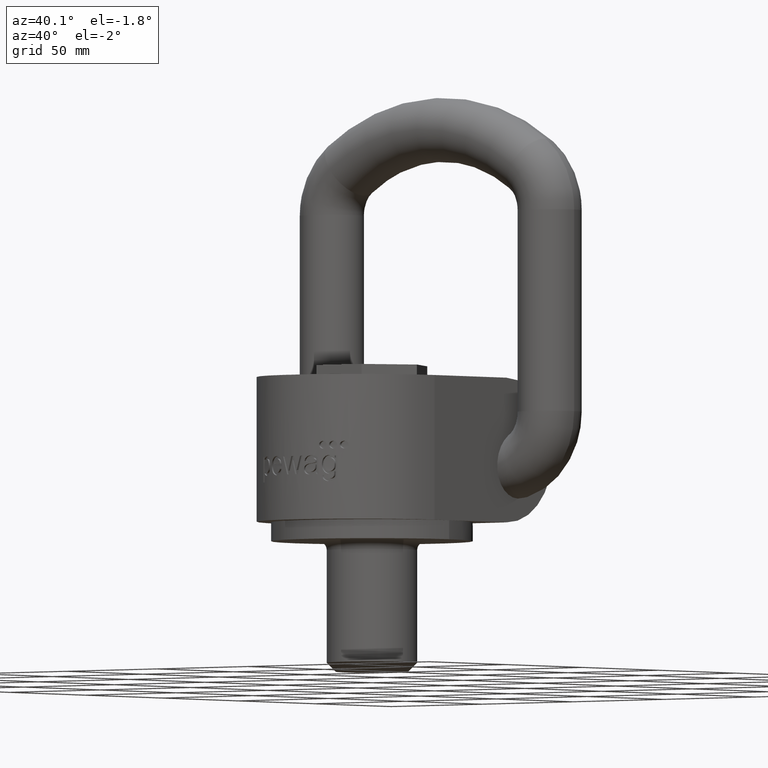
[diagram: clean part render]
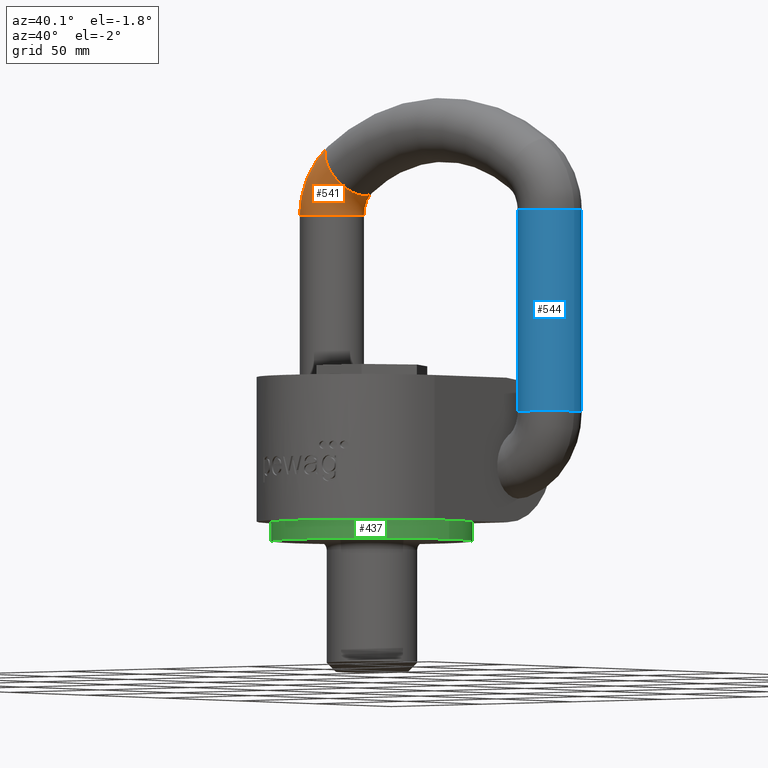
[diagram: same view with three faces highlighted in distinct colors, each labeled with its STEP entity id]
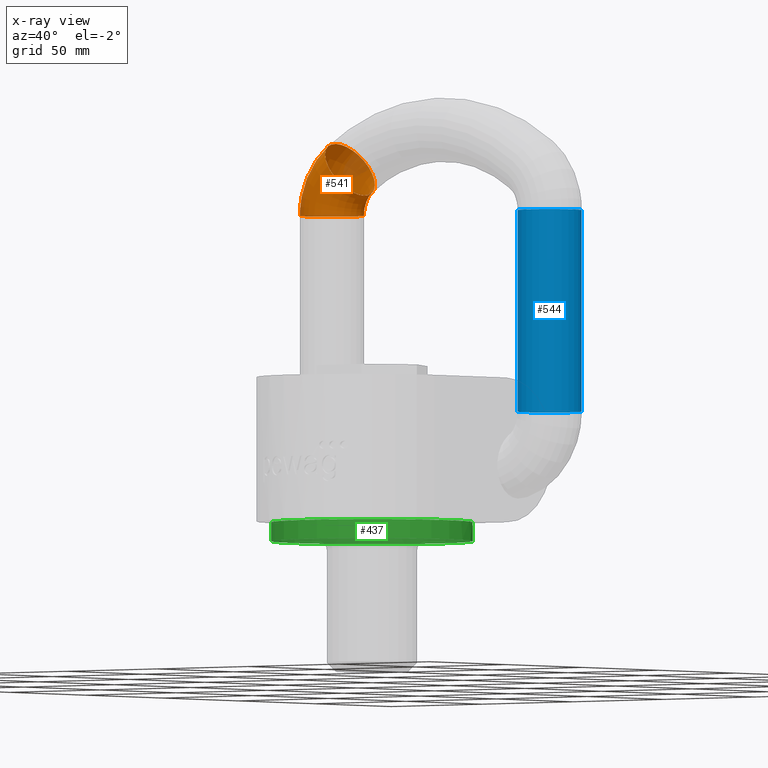
[diagram: x-ray of the same camera — body ghosted, the three highlighted faces saturated]
A machine part, auxiliary view with three faces highlighted in distinct colors.
The next image is the same camera in x-ray (body ghosted, the three faces saturated) — at least one of them is partly hidden behind the body in this view.
Their STEP definitions:

[orange] entity #541 — the highlighted toroidal blend (fillet) surface has major radius 23.5 mm and minor (blend) radius 13.5 mm.
#241=TOROIDAL_SURFACE('',#2595,23.5,13.5);
#541=ADVANCED_FACE('',(#625,#626),#241,.T.);
#625=FACE_BOUND('',#789,.T.);
#626=FACE_BOUND('',#790,.T.);
#789=EDGE_LOOP('',(#1755));
#790=EDGE_LOOP('',(#1756));
#1137=CIRCLE('',#2592,13.5);
#1138=CIRCLE('',#2594,13.5);
#1755=ORIENTED_EDGE('',*,*,#2284,.T.);
#1756=ORIENTED_EDGE('',*,*,#2283,.F.);
#1972=VERTEX_POINT('',#5099);
#1973=VERTEX_POINT('',#5102);
#2283=EDGE_CURVE('',#1972,#1972,#1137,.T.);
#2284=EDGE_CURVE('',#1973,#1973,#1138,.T.);
#2592=AXIS2_PLACEMENT_3D('',#5098,#3038,#3039);
#2594=AXIS2_PLACEMENT_3D('',#5101,#3042,#3043);
#2595=AXIS2_PLACEMENT_3D('',#5103,#3044,#3045);
#3038=DIRECTION('',(-1.11022302462516E-16,0.,-1.));
#3039=DIRECTION('',(-1.,0.,0.));
#3042=DIRECTION('',(-0.818291720111281,0.,-0.574803149606299));
#3043=DIRECTION('',(-0.574803149606299,0.,0.818291720111281));
#3044=DIRECTION('',(0.,-1.,0.));
#3045=DIRECTION('',(0.,0.,-1.));
#5098=CARTESIAN_POINT('',(-60.,45.,131.461524227066));
#5099=CARTESIAN_POINT('',(-73.5,45.,131.461524227066));
#5101=CARTESIAN_POINT('',(-50.007874015748,45.,150.691379649681));
#5102=CARTESIAN_POINT('',(-57.767716535433,45.,161.738317871184));
#5103=CARTESIAN_POINT('',(-36.5,45.,131.461524227066));

[blue] entity #544 — the highlighted cylindrical surface (bore or boss wall) has radius 13.5 mm, axis along (0, 0, -1).
#544=ADVANCED_FACE('',(#631,#632),#562,.T.);
#562=CYLINDRICAL_SURFACE('',#2600,13.5);
#631=FACE_BOUND('',#795,.T.);
#632=FACE_BOUND('',#796,.T.);
#795=EDGE_LOOP('',(#1761));
#796=EDGE_LOOP('',(#1762));
#1134=CIRCLE('',#2586,13.5);
#1140=CIRCLE('',#2598,13.5);
#1761=ORIENTED_EDGE('',*,*,#2286,.F.);
#1762=ORIENTED_EDGE('',*,*,#2280,.T.);
#1969=VERTEX_POINT('',#5090);
#1975=VERTEX_POINT('',#5108);
#2280=EDGE_CURVE('',#1969,#1969,#1134,.T.);
#2286=EDGE_CURVE('',#1975,#1975,#1140,.T.);
#2586=AXIS2_PLACEMENT_3D('',#5089,#3026,#3027);
#2598=AXIS2_PLACEMENT_3D('',#5107,#3050,#3051);
#2600=AXIS2_PLACEMENT_3D('',#5110,#3054,#3055);
#3026=DIRECTION('',(1.12166540207738E-15,0.,1.));
#3027=DIRECTION('',(1.,0.,-1.02798428206033E-15));
#3050=DIRECTION('',(1.12166540207738E-15,0.,1.));
#3051=DIRECTION('',(1.,0.,-2.05596856412066E-15));
#3054=DIRECTION('',(0.,0.,-1.));
#3055=DIRECTION('',(-1.,0.,0.));
#5089=CARTESIAN_POINT('',(60.,45.,46.4999999999999));
#5090=CARTESIAN_POINT('',(73.5,45.,46.4999999999999));
#5107=CARTESIAN_POINT('',(60.,45.,131.461524227066));
#5108=CARTESIAN_POINT('',(73.5,45.,131.461524227066));
#5110=CARTESIAN_POINT('',(60.,45.,131.461524227066));

[green] entity #437 — the highlighted cylindrical surface (bore or boss wall) has radius 42.5 mm, axis along (0, 0, 1).
#437=ADVANCED_FACE('',(#593,#594),#548,.T.);
#548=CYLINDRICAL_SURFACE('',#2525,42.5);
#593=FACE_BOUND('',#669,.T.);
#594=FACE_BOUND('',#670,.T.);
#669=EDGE_LOOP('',(#1320));
#670=EDGE_LOOP('',(#1321,#1322,#1323,#1324));
#1119=CIRCLE('',#2493,42.5);
#1120=CIRCLE('',#2495,42.5);
#1121=CIRCLE('',#2497,42.5);
#1126=CIRCLE('',#2523,42.5);
#1127=CIRCLE('',#2524,42.5);
#1320=ORIENTED_EDGE('',*,*,#2102,.F.);
#1321=ORIENTED_EDGE('',*,*,#2052,.T.);
#1322=ORIENTED_EDGE('',*,*,#2049,.T.);
#1323=ORIENTED_EDGE('',*,*,#2103,.T.);
#1324=ORIENTED_EDGE('',*,*,#2055,.T.);
#1836=VERTEX_POINT('',#3761);
#1837=VERTEX_POINT('',#3762);
#1839=VERTEX_POINT('',#3768);
#1840=VERTEX_POINT('',#3773);
#1870=VERTEX_POINT('',#3871);
#2049=EDGE_CURVE('',#1836,#1837,#1119,.T.);
#2052=EDGE_CURVE('',#1839,#1836,#1120,.T.);
#2055=EDGE_CURVE('',#1840,#1839,#1121,.T.);
#2102=EDGE_CURVE('',#1870,#1870,#1126,.T.);
#2103=EDGE_CURVE('',#1837,#1840,#1127,.T.);
#2493=AXIS2_PLACEMENT_3D('',#3760,#2671,#2672);
#2495=AXIS2_PLACEMENT_3D('',#3767,#2677,#2678);
#2497=AXIS2_PLACEMENT_3D('',#3772,#2683,#2684);
#2523=AXIS2_PLACEMENT_3D('',#3870,#2777,#2778);
#2524=AXIS2_PLACEMENT_3D('',#3872,#2779,#2780);
#2525=AXIS2_PLACEMENT_3D('',#3873,#2781,#2782);
#2671=DIRECTION('',(0.,0.,-1.));
#2672=DIRECTION('',(1.,1.22464679914735E-16,0.));
#2677=DIRECTION('',(0.,0.,-1.));
#2678=DIRECTION('',(1.,1.22464679914735E-16,0.));
#2683=DIRECTION('',(0.,0.,-1.));
#2684=DIRECTION('',(1.,1.22464679914735E-16,0.));
#2777=DIRECTION('',(0.,0.,-1.));
#2778=DIRECTION('',(1.,1.22464679914735E-16,0.));
#2779=DIRECTION('',(0.,0.,-1.));
#2780=DIRECTION('',(1.,1.22464679914735E-16,0.));
#2781=DIRECTION('',(0.,0.,1.));
#2782=DIRECTION('',(1.,0.,0.));
#3760=CARTESIAN_POINT('',(0.,0.,6.69539461904587E-14));
#3761=CARTESIAN_POINT('',(-42.5,0.,2.92570631503094E-15));
#3762=CARTESIAN_POINT('',(-20.,37.5,7.94860999328799E-15));
#3767=CARTESIAN_POINT('',(0.,0.,6.69539461904587E-14));
#3768=CARTESIAN_POINT('',(42.5,0.,6.69539461904587E-14));
#3772=CARTESIAN_POINT('',(0.,0.,6.69539461904587E-14));
#3773=CARTESIAN_POINT('',(20.,37.5,7.94860999328799E-15));
#3870=CARTESIAN_POINT('',(0.,0.,-7.99999999999993));
#3871=CARTESIAN_POINT('',(42.5,5.20474889637625E-15,-7.99999999999993));
#3872=CARTESIAN_POINT('',(0.,0.,6.69539461904587E-14));
#3873=CARTESIAN_POINT('',(0.,0.,-7.99999999999993));